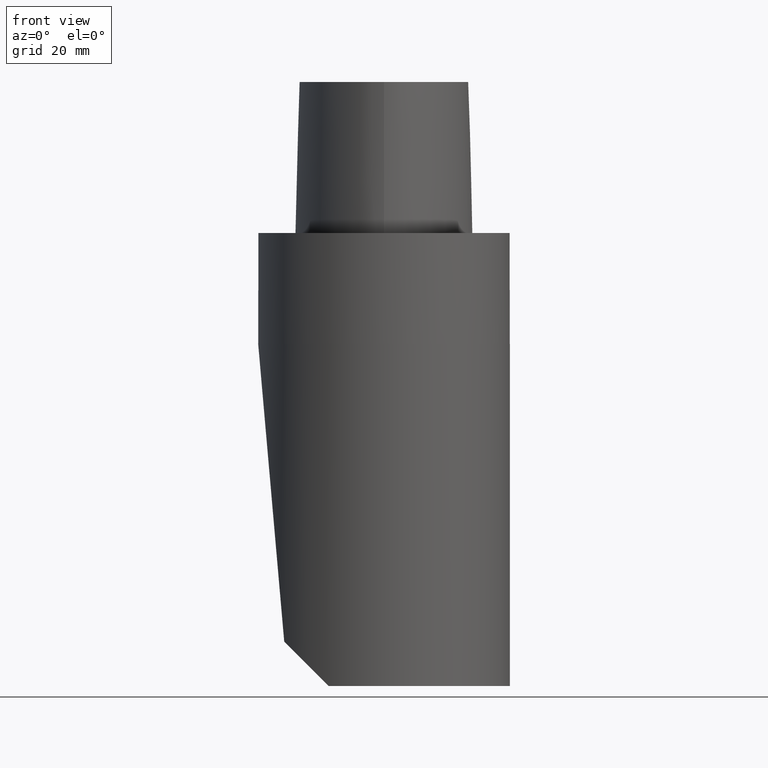
[diagram: clean part render]
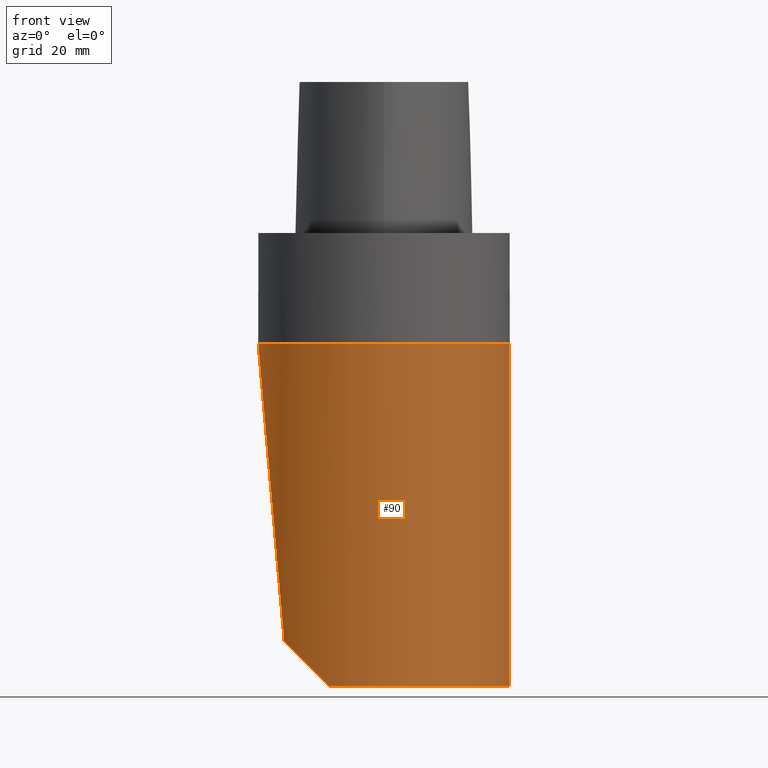
[diagram: same view with one face highlighted and labeled with its STEP entity id]
A machine part, front view. The second image highlights one B-rep face of the part: STEP entity #90.
In plain terms, the highlighted cylindrical surface (partial cylindrical patch) has radius 25 mm, axis along (-0, 0, 1).
Its self-contained STEP definition (entity closure, byte-faithful):
#90=ADVANCED_FACE('240[2]',(#256),#257,.T.);
#103=EDGE_CURVE('240[2]',#276,#277,#278,.T.);
#139=EDGE_CURVE('240[2]',#331,#308,#332,.T.);
#160=EDGE_CURVE('240[2]',#361,#277,#362,.T.);
#189=EDGE_CURVE('240[2]',#352,#276,#396,.T.);
#193=EDGE_CURVE('240[2]',#295,#331,#400,.T.);
#220=EDGE_CURVE('240[2]',#295,#361,#435,.T.);
#225=EDGE_CURVE('240[2]',#308,#352,#441,.T.);
#256=FACE_OUTER_BOUND('',#466,.T.);
#257=CYLINDRICAL_SURFACE('',#467,25.0);
#276=VERTEX_POINT('',#492);
#277=VERTEX_POINT('',#493);
#278=CIRCLE('',#494,25.0000000000001);
#295=VERTEX_POINT('',#521);
#308=VERTEX_POINT('',#538);
#331=VERTEX_POINT('',#573);
#332=LINE('',#574,#575);
#352=VERTEX_POINT('',#699);
#361=VERTEX_POINT('',#1110);
#362=ELLIPSE('',#1111,286.842831141736,25.0000000000001);
#396=CIRCLE('',#1179,25.0);
#400=CIRCLE('',#1186,25.0);
#435=ELLIPSE('',#1240,35.3553390593262,25.0);
#441=LINE('',#1248,#1249);
#466=EDGE_LOOP('',(#1320,#1321,#1322,#1323,#1324,#1325,#1326));
#467=AXIS2_PLACEMENT_3D('',#1327,#1328,#1329);
#492=CARTESIAN_POINT('',(-18.5687480408742,-16.7392232852859,-22.000000000001));
#493=CARTESIAN_POINT('',(-25.0,-3.86535248253495E-012,-21.9999999999998));
#494=AXIS2_PLACEMENT_3D('',#1360,#1361,#1362);
#521=CARTESIAN_POINT('',(-11.0000001587305,-22.4499442428728,-90.0000000000002));
#538=CARTESIAN_POINT('',(25.0,-3.75166564481333E-012,-25.0000000000009));
#573=CARTESIAN_POINT('',(25.0,-3.75166564481333E-012,-90.0000000000002));
#574=CARTESIAN_POINT('',(25.0,-3.75166564481333E-012,-89.0000000000009));
#575=VECTOR('',#1404,64.0);
#699=CARTESIAN_POINT('',(25.0,-3.75166564481333E-012,-21.9999999999998));
#1110=CARTESIAN_POINT('',(-19.8226529999562,-15.2335953748104,-81.1773471587753));
#1111=AXIS2_PLACEMENT_3D('',#1422,#1423,#1424);
#1179=AXIS2_PLACEMENT_3D('',#1465,#1466,#1467);
#1186=AXIS2_PLACEMENT_3D('',#1469,#1470,#1471);
#1240=AXIS2_PLACEMENT_3D('',#1519,#1520,#1521);
#1248=CARTESIAN_POINT('',(25.0,-3.75166564481333E-012,-25.0000000000009));
#1249=VECTOR('',#1531,3.00000000000111);
#1320=ORIENTED_EDGE('',*,*,#189,.T.);
#1321=ORIENTED_EDGE('',*,*,#103,.T.);
#1322=ORIENTED_EDGE('',*,*,#160,.F.);
#1323=ORIENTED_EDGE('',*,*,#220,.F.);
#1324=ORIENTED_EDGE('',*,*,#193,.T.);
#1325=ORIENTED_EDGE('',*,*,#139,.T.);
#1326=ORIENTED_EDGE('',*,*,#225,.T.);
#1327=CARTESIAN_POINT('',(-1.6112677933589E-014,-3.75166564481333E-012,-263.139999954391));
#1328=DIRECTION('',(-0.0,0.0,1.0));
#1329=DIRECTION('',(1.0,0.0,0.0));
#1360=CARTESIAN_POINT('',(1.12339726242554E-013,-3.86535248253495E-012,-22.000000000001));
#1361=DIRECTION('',(0.0,0.0,-1.0));
#1362=DIRECTION('',(1.0,0.0,0.0));
#1404=DIRECTION('',(0.0,0.0,1.0));
#1422=CARTESIAN_POINT('',(9.48425050245056E-014,-3.86535248253495E-012,-307.751307727756));
#1423=DIRECTION('',(-0.996194698091745,1.06735001383234E-017,-0.0871557427476616));
#1424=DIRECTION('',(0.0871557427476616,1.32672164972885E-016,-0.996194698091745));
#1465=CARTESIAN_POINT('',(-1.34711147906215E-015,-3.75166564481333E-012,-22.000000000001));
#1466=DIRECTION('',(0.0,0.0,-1.0));
#1467=DIRECTION('',(1.0,0.0,0.0));
#1469=CARTESIAN_POINT('',(-5.5109105961631E-015,-3.75166564481333E-012,-90.0000000000002));
#1470=DIRECTION('',(0.0,0.0,1.0));
#1471=DIRECTION('',(1.0,0.0,0.0));
#1519=CARTESIAN_POINT('',(-6.18446634541354E-015,-3.75166564481333E-012,-101.00000015873));
#1520=DIRECTION('',(-0.707106781186523,8.65956056235523E-017,-0.707106781186572));
#1521=DIRECTION('',(0.707106781186572,1.73191211247099E-016,-0.707106781186523));
#1531=DIRECTION('',(0.0,0.0,1.0));